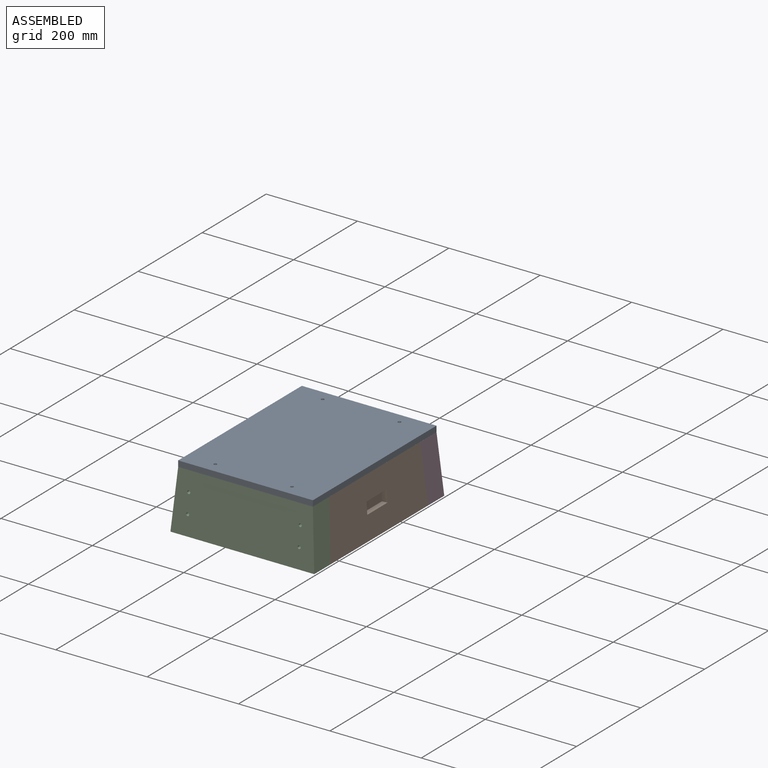
[diagram: assembled view]
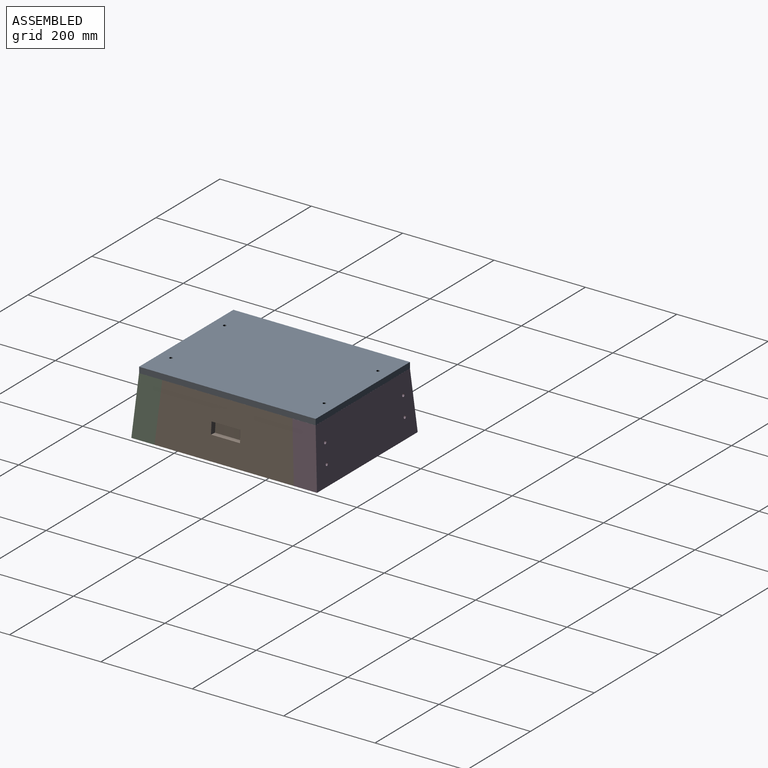
[diagram: assembled view, second angle]
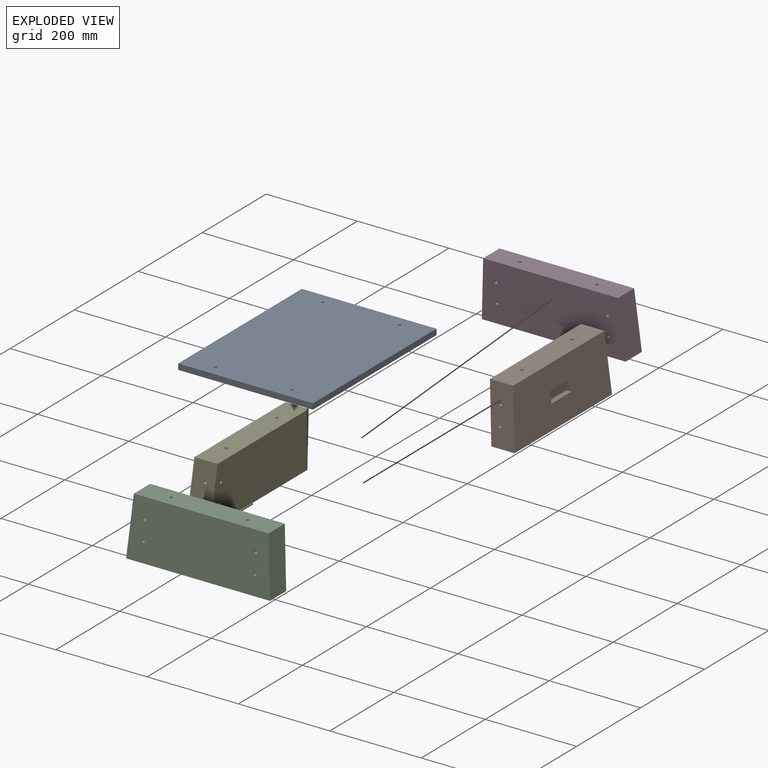
[diagram: exploded view]
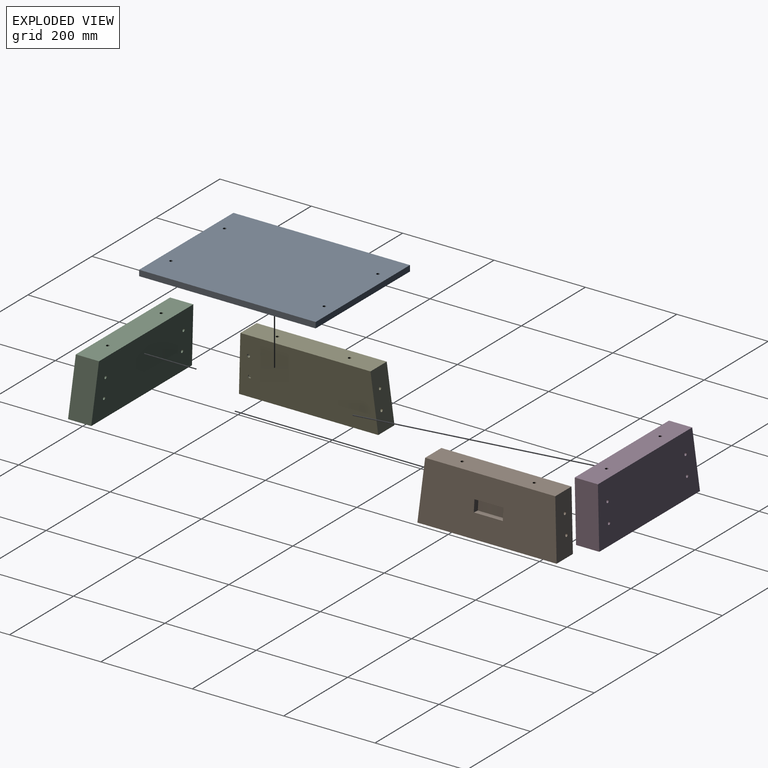
[diagram: exploded view, second angle]
ASSEMBLY  parts=5 mates=4
PART A: 10 faces, bbox 386.4x12.7x294.8 mm
  f0: plane 386.41x12.7mm, normal (0,0,1), area 4907.4mm2, adj f1,f3,f4,f5
  f1: plane 294.79x12.7mm, normal (-1,0,0), area 3743.9mm2, adj f0,f2,f4,f5
  f2: plane 386.41x12.7mm, normal (0,0,-1), area 4907.4mm2, adj f1,f3,f4,f5
  f3: plane 294.79x12.7mm, normal (1,0,0), area 3743.9mm2, adj f0,f2,f4,f5
  f4: plane 386.41x294.79mm, normal (0,-1,0), area 113767.4mm2, adj f0,f1,f2,f3,f6,f7,f8,f9
  f5: plane 386.41x294.79mm, normal (0,1,0), area 113767.4mm2, adj f0,f1,f2,f3,f6,f7,f8,f9
  f6: cylinder r=3.38mm len=12.7mm, axis (0,-1,0), area 269.6mm2, adj f4,f5
  f7: cylinder r=3.38mm len=12.7mm, axis (0,-1,0), area 269.6mm2, adj f4,f5
  f8: cylinder r=3.38mm len=12.7mm, axis (0,-1,0), area 269.6mm2, adj f4,f5
  f9: cylinder r=3.38mm len=12.7mm, axis (0,-1,0), area 269.6mm2, adj f4,f5
PART B: 31 faces, bbox 304.9x60.9x127.1 mm
  f0: plane 127.11x60.91mm, normal (-1,0,0.08), area 6399.6mm2, adj f1,f3,f4,f5,f24,f25
  f1: plane 304.8x127mm, normal (0,-1,0.08), area 35943.1mm2, adj f0,f2,f4,f5,f26,f27,f28,f29
  f2: plane 127x60.8mm, normal (1,0,0.08), area 6399.6mm2, adj f1,f3,f4,f5,f24,f25
  f3: plane 304.8x127mm, normal (0,1,-0.08), area 37556mm2, adj f0,f2,f4,f5
  f4: plane 284.81x50.8mm, normal (0,0,1), area 14396.6mm2, adj f0,f1,f2,f3,f6,f15
  f5: plane 304.8x50.8mm, normal (0,0,-1), area 15483.8mm2, adj f0,f1,f2,f3
  f6: cylinder r=3.38mm len=6.76mm, axis (0,0,-1), area 76.3mm2, adj f4,f13
  f7: plane 5.59x5.51mm, normal (-0.87,-0.5,0), area 35.6mm2, adj f8,f12,f13,f14
  f8: plane 6.45x5.51mm, normal (0,-1,0), area 35.6mm2, adj f7,f9,f13,f14
  f9: plane 5.59x5.51mm, normal (0.87,-0.5,0), area 35.6mm2, adj f8,f10,f13,f14
  f10: plane 5.59x5.51mm, normal (0.87,0.5,0), area 35.6mm2, adj f9,f11,f13,f14
  f11: plane 6.45x5.51mm, normal (0,1,0), area 35.6mm2, adj f10,f12,f13,f14
  f12: plane 5.59x5.51mm, normal (-0.87,0.5,0), area 35.6mm2, adj f7,f11,f13,f14
  f13: plane 12.9x11.17mm, normal (0,0,-1), area 72.3mm2, adj f6,f7,f8,f9,f10,f11,f12
  f14: plane 12.9x11.17mm, normal (0,0,1), area 108.1mm2, adj f7,f8,f9,f10,f11,f12
  f15: cylinder r=3.38mm len=6.76mm, axis (0,0,-1), area 76.3mm2, adj f4,f22
  f16: plane 5.59x5.51mm, normal (0.87,0.5,0), area 35.6mm2, adj f17,f21,f22,f23
  f17: plane 6.45x5.51mm, normal (0,1,0), area 35.6mm2, adj f16,f18,f22,f23
  f18: plane 5.59x5.51mm, normal (-0.87,0.5,0), area 35.6mm2, adj f17,f19,f22,f23
  f19: plane 5.59x5.51mm, normal (-0.87,-0.5,0), area 35.6mm2, adj f18,f20,f22,f23
  f20: plane 6.45x5.51mm, normal (0,-1,0), area 35.6mm2, adj f19,f21,f22,f23
  f21: plane 5.59x5.51mm, normal (0.87,-0.5,0), area 35.6mm2, adj f16,f20,f22,f23
  f22: plane 12.9x11.17mm, normal (0,0,-1), area 72.3mm2, adj f15,f16,f17,f18,f19,f20,f21
  f23: plane 12.9x11.17mm, normal (0,0,1), area 108.1mm2, adj f16,f17,f18,f19,f20,f21
  f24: cylinder r=3.38mm len=298.68mm, axis (-1,0,0), area 6328.2mm2, adj f0,f2
  f25: cylinder r=3.38mm len=292mm, axis (1,0,0), area 6186.8mm2, adj f0,f2
  f26: plane 63.5x12.66mm, normal (0,-0.08,-1), area 806.4mm2, adj f1,f27,f29,f30
  f27: plane 26.32x14.65mm, normal (1,0,0), area 322.6mm2, adj f1,f26,f28,f30
  f28: plane 63.5x12.66mm, normal (0,0.08,1), area 806.4mm2, adj f1,f27,f29,f30
  f29: plane 26.32x14.65mm, normal (-1,0,0), area 322.6mm2, adj f1,f26,f28,f30
  f30: plane 63.5x25.32mm, normal (0,-1,0.08), area 1612.9mm2, adj f26,f27,f28,f29
PART C: 28 faces, bbox 314.9x60.9x127.1 mm
  f0: plane 127x60.8mm, normal (-1,0,0.08), area 6471.5mm2, adj f1,f3,f4,f5
  f1: plane 314.91x127.11mm, normal (0,-1,0.08), area 38685.4mm2, adj f0,f2,f4,f5,f24,f25,f26,f27
  f2: plane 127x60.8mm, normal (1,0,0.08), area 6471.5mm2, adj f1,f3,f4,f5
  f3: plane 314.8x127mm, normal (0,1,-0.08), area 38685.4mm2, adj f0,f2,f4,f5,f24,f25,f26,f27
  f4: plane 294.81x50.8mm, normal (0,0,1), area 14904.4mm2, adj f0,f1,f2,f3,f6,f15
  f5: plane 314.8x50.8mm, normal (0,0,-1), area 15991.6mm2, adj f0,f1,f2,f3
  f6: cylinder r=3.38mm len=6.76mm, axis (0,0,-1), area 76.3mm2, adj f4,f13
  f7: plane 5.59x5.51mm, normal (-0.87,-0.5,0), area 35.6mm2, adj f8,f12,f13,f14
  f8: plane 6.45x5.51mm, normal (0,-1,0), area 35.6mm2, adj f7,f9,f13,f14
  f9: plane 5.59x5.51mm, normal (0.87,-0.5,0), area 35.6mm2, adj f8,f10,f13,f14
  f10: plane 5.59x5.51mm, normal (0.87,0.5,0), area 35.6mm2, adj f9,f11,f13,f14
  f11: plane 6.45x5.51mm, normal (0,1,0), area 35.6mm2, adj f10,f12,f13,f14
  f12: plane 5.59x5.51mm, normal (-0.87,0.5,0), area 35.6mm2, adj f7,f11,f13,f14
  f13: plane 12.9x11.17mm, normal (0,0,-1), area 72.3mm2, adj f6,f7,f8,f9,f10,f11,f12
  f14: plane 12.9x11.17mm, normal (0,0,1), area 108.1mm2, adj f7,f8,f9,f10,f11,f12
  f15: cylinder r=3.38mm len=6.76mm, axis (0,0,-1), area 76.3mm2, adj f4,f22
  f16: plane 5.59x5.51mm, normal (0.87,0.5,0), area 35.6mm2, adj f17,f21,f22,f23
  f17: plane 6.45x5.51mm, normal (0,1,0), area 35.6mm2, adj f16,f18,f22,f23
  f18: plane 5.59x5.51mm, normal (-0.87,0.5,0), area 35.6mm2, adj f17,f19,f22,f23
  f19: plane 5.59x5.51mm, normal (-0.87,-0.5,0), area 35.6mm2, adj f18,f20,f22,f23
  f20: plane 6.45x5.51mm, normal (0,-1,0), area 35.6mm2, adj f19,f21,f22,f23
  f21: plane 5.59x5.51mm, normal (0.87,-0.5,0), area 35.6mm2, adj f16,f20,f22,f23
  f22: plane 12.9x11.17mm, normal (0,0,-1), area 72.3mm2, adj f15,f16,f17,f18,f19,f20,f21
  f23: plane 12.9x11.17mm, normal (0,0,1), area 108.1mm2, adj f16,f17,f18,f19,f20,f21
  f24: cylinder r=3.38mm len=51.34mm, axis (0,-1,0), area 1078.3mm2, adj f1,f3
  f25: cylinder r=3.38mm len=51.34mm, axis (0,-1,0), area 1078.3mm2, adj f1,f3
  f26: cylinder r=3.38mm len=51.34mm, axis (0,-1,0), area 1078.3mm2, adj f1,f3
  f27: cylinder r=3.38mm len=51.34mm, axis (0,-1,0), area 1078.3mm2, adj f1,f3
PART D: same geometry as C
PART E: 35 faces, bbox 304.9x60.9x127.1 mm
  f0: plane 304.8x127mm, normal (0,-1,0.08), area 35943.1mm2, adj f1,f2,f4,f5,f30,f31,f32,f33
  f1: plane 127.11x60.91mm, normal (-1,0,0.08), area 6399.6mm2, adj f0,f3,f4,f5,f24,f25
  f2: plane 127x60.8mm, normal (1,0,0.08), area 6399.6mm2, adj f0,f3,f4,f5,f24,f25
  f3: plane 304.8x127mm, normal (0,1,-0.08), area 37484.1mm2, adj f1,f2,f4,f5,f27,f29
  f4: plane 284.81x50.8mm, normal (0,0,1), area 14396.6mm2, adj f0,f1,f2,f3,f6,f15
  f5: plane 304.8x50.8mm, normal (0,0,-1), area 15483.8mm2, adj f0,f1,f2,f3
  f6: cylinder r=3.38mm len=6.76mm, axis (0,0,-1), area 76.3mm2, adj f4,f13
  f7: plane 5.59x5.51mm, normal (-0.87,-0.5,0), area 35.6mm2, adj f8,f12,f13,f14
  f8: plane 6.45x5.51mm, normal (0,-1,0), area 35.6mm2, adj f7,f9,f13,f14
  f9: plane 5.59x5.51mm, normal (0.87,-0.5,0), area 35.6mm2, adj f8,f10,f13,f14
  f10: plane 5.59x5.51mm, normal (0.87,0.5,0), area 35.6mm2, adj f9,f11,f13,f14
  f11: plane 6.45x5.51mm, normal (0,1,0), area 35.6mm2, adj f10,f12,f13,f14
  f12: plane 5.59x5.51mm, normal (-0.87,0.5,0), area 35.6mm2, adj f7,f11,f13,f14
  f13: plane 12.9x11.17mm, normal (0,0,-1), area 72.3mm2, adj f6,f7,f8,f9,f10,f11,f12
  f14: plane 12.9x11.17mm, normal (0,0,1), area 108.1mm2, adj f7,f8,f9,f10,f11,f12
  f15: cylinder r=3.38mm len=6.76mm, axis (0,0,-1), area 76.3mm2, adj f4,f22
  f16: plane 5.59x5.51mm, normal (0.87,0.5,0), area 35.6mm2, adj f17,f21,f22,f23
  f17: plane 6.45x5.51mm, normal (0,1,0), area 35.6mm2, adj f16,f18,f22,f23
  f18: plane 5.59x5.51mm, normal (-0.87,0.5,0), area 35.6mm2, adj f17,f19,f22,f23
  f19: plane 5.59x5.51mm, normal (-0.87,-0.5,0), area 35.6mm2, adj f18,f20,f22,f23
  f20: plane 6.45x5.51mm, normal (0,-1,0), area 35.6mm2, adj f19,f21,f22,f23
  f21: plane 5.59x5.51mm, normal (0.87,-0.5,0), area 35.6mm2, adj f16,f20,f22,f23
  f22: plane 12.9x11.17mm, normal (0,0,-1), area 72.3mm2, adj f15,f16,f17,f18,f19,f20,f21
  f23: plane 12.9x11.17mm, normal (0,0,1), area 108.1mm2, adj f16,f17,f18,f19,f20,f21
  f24: cylinder r=3.38mm len=298.68mm, axis (-1,0,0), area 6328.2mm2, adj f1,f2
  f25: cylinder r=3.38mm len=292mm, axis (1,0,0), area 6186.8mm2, adj f1,f2
  f26: plane 6.76x6.76mm, normal (0,1,0), area 35.9mm2, adj f27
  f27: cylinder r=3.38mm len=6.93mm, axis (0,-1,0), area 141.4mm2, adj f3,f26
  f28: plane 6.76x6.76mm, normal (0,1,0), area 35.9mm2, adj f29
  f29: cylinder r=3.38mm len=6.76mm, axis (0,-1,0), area 70.7mm2, adj f3,f28
  f30: plane 63.5x12.66mm, normal (0,-0.08,-1), area 806.4mm2, adj f0,f31,f33,f34
  f31: plane 26.32x14.65mm, normal (1,0,0), area 322.6mm2, adj f0,f30,f32,f34
  f32: plane 63.5x12.66mm, normal (0,0.08,1), area 806.4mm2, adj f0,f31,f33,f34
  f33: plane 26.32x14.65mm, normal (-1,0,0), area 322.6mm2, adj f0,f30,f32,f34
  f34: plane 63.5x25.32mm, normal (0,-1,0.08), area 1612.9mm2, adj f30,f31,f32,f33
PLACE A rot(axis=(-0.58,-0.58,0.58),120deg) t=(267.83,-155.33,127.01)mm
PLACE B rot(axis=(0,0,1),90deg) t=(356.68,-85.1,0.01)mm
PLACE C rot(axis=(0,0,1),0deg) t=(255.08,-237.5,0.01)mm
PLACE D rot(axis=(0,0,-1),180deg) t=(245.09,67.29,-0.05)mm
PLACE E rot(axis=(0,0,-1),90deg) t=(143.49,-85.11,-0.06)mm
MATE fastened A.f6 <-> C.f6  axis (0,0,-1) through (166.18,-252.9,127.01)mm
MATE fastened E.f2 <-> C.f3  axis (0,-1,0.08) through (128.09,-230.84,84.61)mm
MATE fastened C.f3 <-> B.f0  axis (0,1,-0.08) through (372.08,-234.17,42.34)mm
MATE fastened D.f3 <-> E.f1  axis (0,-1,-0.08) through (128.09,60.63,84.61)mm
